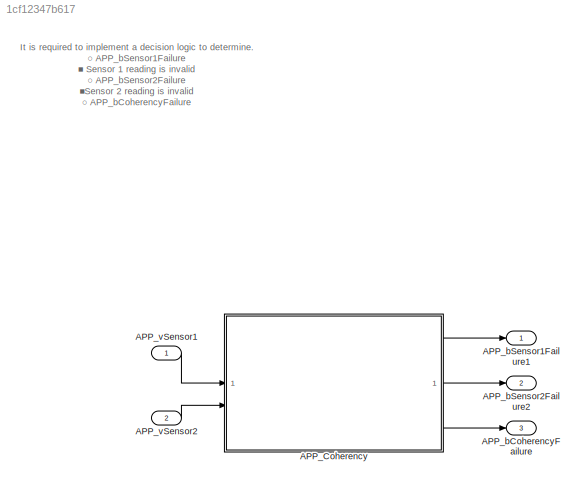
MODEL slx_1cf12347b617
KIND model
CONFIG AbsTol = auto
CONFIG EnableMultiTasking = off
CONFIG FixedStep = auto
CONFIG MaxStep = auto
CONFIG MinStep = auto
CONFIG RelTol = 1e-3
CONFIG SampleTimeConstraint = Unconstrained
CONFIG SolverName = FixedStepDiscrete
CONFIG StartTime = 0.0
CONFIG StopTime = 10.0
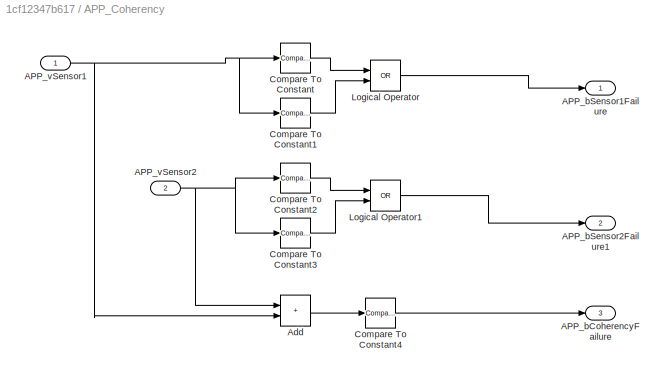
BLOCK [SubSystem] APP_Coherency
BLOCK [Outport] APP_Coherency/APP_bCoherencyFailure
  Port = 3
BLOCK [Outport] APP_Coherency/APP_bSensor1Failure
BLOCK [Outport] APP_Coherency/APP_bSensor2Failure1
  Port = 2
BLOCK [Inport] APP_Coherency/APP_vSensor1
BLOCK [Inport] APP_Coherency/APP_vSensor2
  Port = 2
BLOCK [Sum] APP_Coherency/Add
  IconShape = rectangular
BLOCK [Reference] APP_Coherency/Compare To Constant  REF=simulink/Logic and Bit
Operations/Compare
To Constant
  SourceBlock = simulink/Logic and Bit\nOperations/Compare\nTo Constant
  SourceType = Compare To Constant
BLOCK [Reference] APP_Coherency/Compare To Constant1  REF=simulink/Logic and Bit
Operations/Compare
To Constant
  SourceBlock = simulink/Logic and Bit\nOperations/Compare\nTo Constant
  SourceType = Compare To Constant
BLOCK [Reference] APP_Coherency/Compare To Constant2  REF=simulink/Logic and Bit
Operations/Compare
To Constant
  SourceBlock = simulink/Logic and Bit\nOperations/Compare\nTo Constant
  SourceType = Compare To Constant
BLOCK [Reference] APP_Coherency/Compare To Constant3  REF=simulink/Logic and Bit
Operations/Compare
To Constant
  SourceBlock = simulink/Logic and Bit\nOperations/Compare\nTo Constant
  SourceType = Compare To Constant
BLOCK [Reference] APP_Coherency/Compare To Constant4  REF=simulink/Logic and Bit
Operations/Compare
To Constant
  SourceBlock = simulink/Logic and Bit\nOperations/Compare\nTo Constant
  SourceType = Compare To Constant
BLOCK [Logic] APP_Coherency/Logical Operator
  AllPortsSameDT = off
  Operator = OR
  OutDataTypeStr = boolean
BLOCK [Logic] APP_Coherency/Logical Operator1
  AllPortsSameDT = off
  Operator = OR
  OutDataTypeStr = boolean
BLOCK [Outport] APP_bCoherencyFailure
  Port = 3
BLOCK [Outport] APP_bSensor1Failure1
BLOCK [Outport] APP_bSensor2Failure2
  Port = 2
BLOCK [Inport] APP_vSensor1
BLOCK [Inport] APP_vSensor2
  Port = 2
ANNOTATION (root): It is required to implement a decision logic to determine. ○ APP_bSensor1Failure ■ Sensor 1 reading is invalid ○ APP_bSensor2Failure ■Sensor 2 reading is invalid ○ APP_bCoherencyFailure ■ The reading from sensor 1 & sensor 2 are not coherent
NET APP_Coherency/APP_vSensor1:1 -> APP_Coherency/Add:2, APP_Coherency/Compare To Constant1:1, APP_Coherency/Compare To Constant:1
NET APP_Coherency/APP_vSensor2:1 -> APP_Coherency/Add:1, APP_Coherency/Compare To Constant2:1, APP_Coherency/Compare To Constant3:1
LINE APP_Coherency/Add:1 -> APP_Coherency/Compare To Constant4:1
LINE APP_Coherency/Compare To Constant1:1 -> APP_Coherency/Logical Operator:2
LINE APP_Coherency/Compare To Constant2:1 -> APP_Coherency/Logical Operator1:1
LINE APP_Coherency/Compare To Constant3:1 -> APP_Coherency/Logical Operator1:2
LINE APP_Coherency/Compare To Constant4:1 -> APP_Coherency/APP_bCoherencyFailure:1
LINE APP_Coherency/Compare To Constant:1 -> APP_Coherency/Logical Operator:1
LINE APP_Coherency/Logical Operator1:1 -> APP_Coherency/APP_bSensor2Failure1:1
LINE APP_Coherency/Logical Operator:1 -> APP_Coherency/APP_bSensor1Failure:1
LINE APP_Coherency:1 -> APP_bSensor1Failure1:1
LINE APP_Coherency:2 -> APP_bSensor2Failure2:1
LINE APP_Coherency:3 -> APP_bCoherencyFailure:1
LINE APP_vSensor1:1 -> APP_Coherency:1
LINE APP_vSensor2:1 -> APP_Coherency:2
note: NET lines group one-source signal fan-out (src -> all destinations, sorted); 1:1 wires keep LINE
